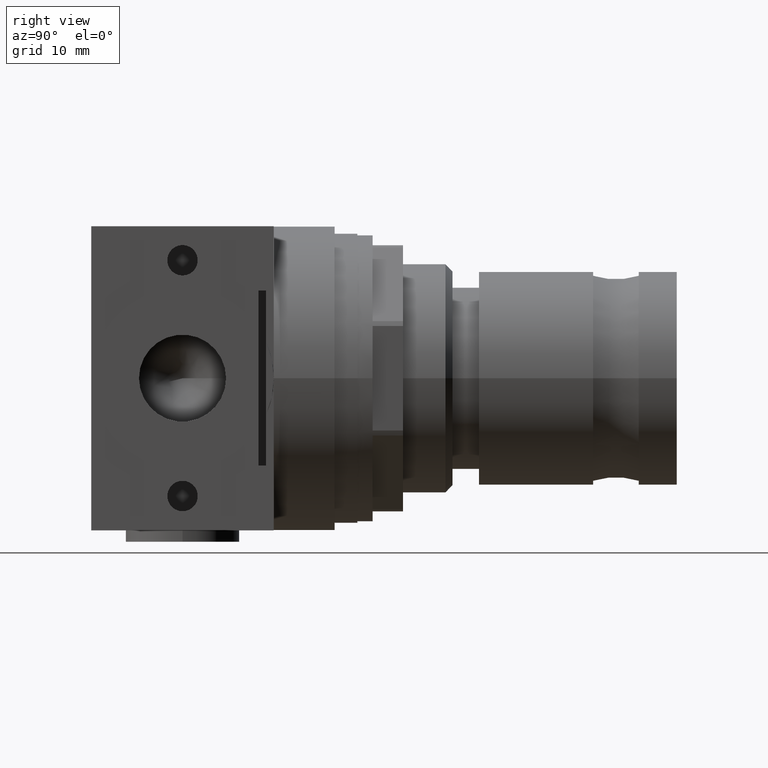
[diagram: clean part render]
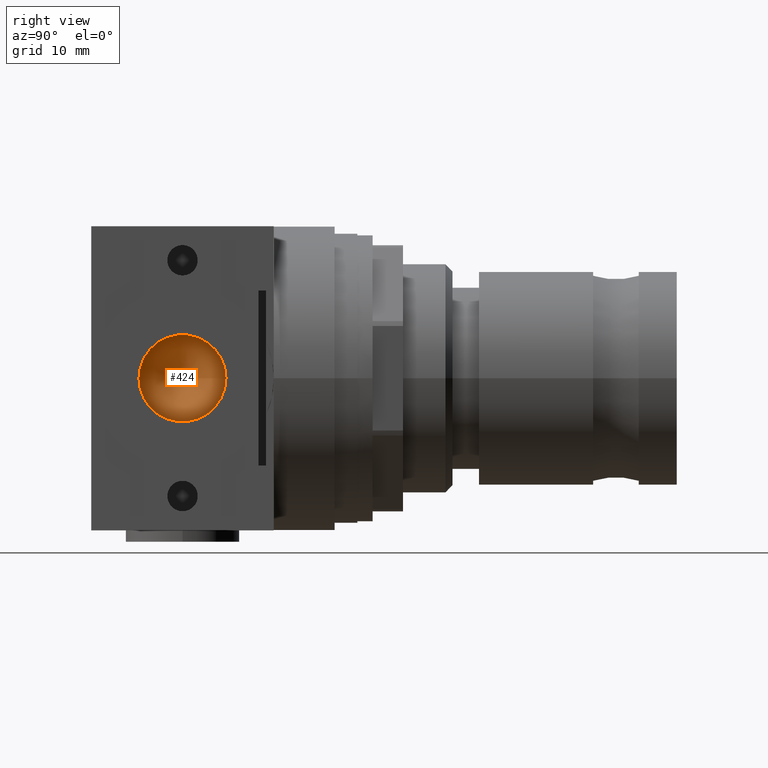
[diagram: same view with one face highlighted and labeled with its STEP entity id]
A machine part, right view. The second image highlights one B-rep face of the part: STEP entity #424.
In plain terms, the highlighted conical surface has half-angle 60 deg.
Its self-contained STEP definition (entity closure, byte-faithful):
#424 = ADVANCED_FACE( '', ( #869, #870 ), #871, .F. );
#869 = FACE_OUTER_BOUND( '', #1314, .T. );
#870 = FACE_BOUND( '', #1315, .T. );
#871 = CONICAL_SURFACE( '', #1316, 866.025403784439, 1.04719755119660 );
#1314 = EDGE_LOOP( '', ( #2238 ) );
#1315 = VERTEX_LOOP( '', #2239 );
#1316 = AXIS2_PLACEMENT_3D( '', #2240, #2241, #2242 );
#2238 = ORIENTED_EDGE( '', *, *, #2597, .T. );
#2239 = VERTEX_POINT( '', #2778 );
#2240 = CARTESIAN_POINT( '', ( 509.496113084562, -5.17379765782025E-015, 0.000000000000000 ) );
#2241 = DIRECTION( '', ( 1.00000000000000, -1.05696399205655E-017, -0.000000000000000 ) );
#2242 = DIRECTION( '', ( 1.05696399205655E-017, 1.00000000000000, 0.000000000000000 ) );
#2597 = EDGE_CURVE( '', #3105, #3105, #3106, .T. );
#2778 = CARTESIAN_POINT( '', ( 9.49611308456237, 1.11022302462516E-016, 0.000000000000000 ) );
#3105 = VERTEX_POINT( '', #3768 );
#3106 = CIRCLE( '', #3769, 5.72250000000000 );
#3768 = CARTESIAN_POINT( '', ( 12.8000000000000, 5.72250000000000, 0.000000000000000 ) );
#3769 = AXIS2_PLACEMENT_3D( '', #4360, #4361, #4362 );
#4360 = CARTESIAN_POINT( '', ( 12.8000000000000, 7.61014074280719E-017, 0.000000000000000 ) );
#4361 = DIRECTION( '', ( 1.00000000000000, -1.05696399205655E-017, -0.000000000000000 ) );
#4362 = DIRECTION( '', ( 1.05696399205655E-017, 1.00000000000000, 0.000000000000000 ) );